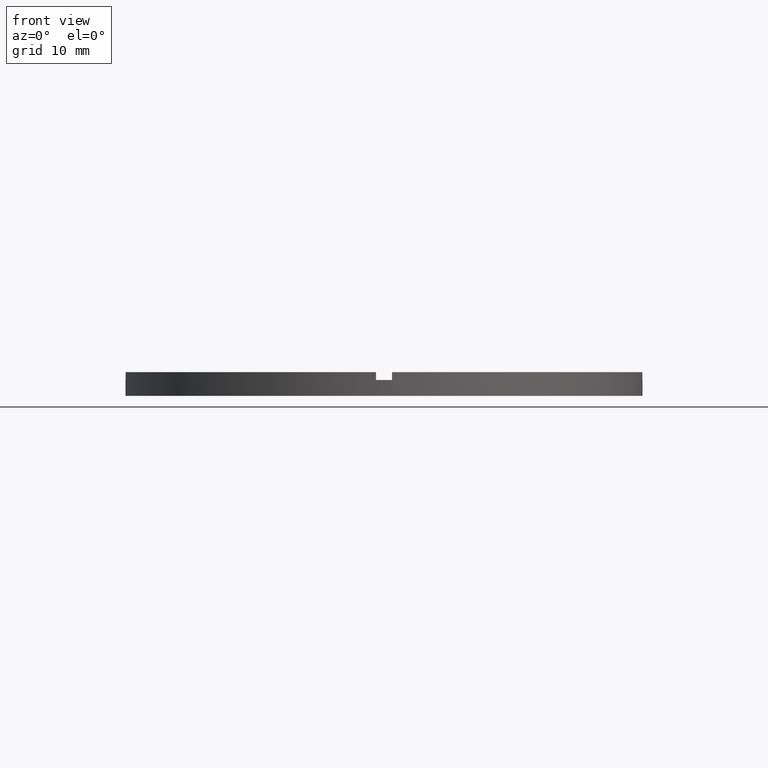
[diagram: clean part render]
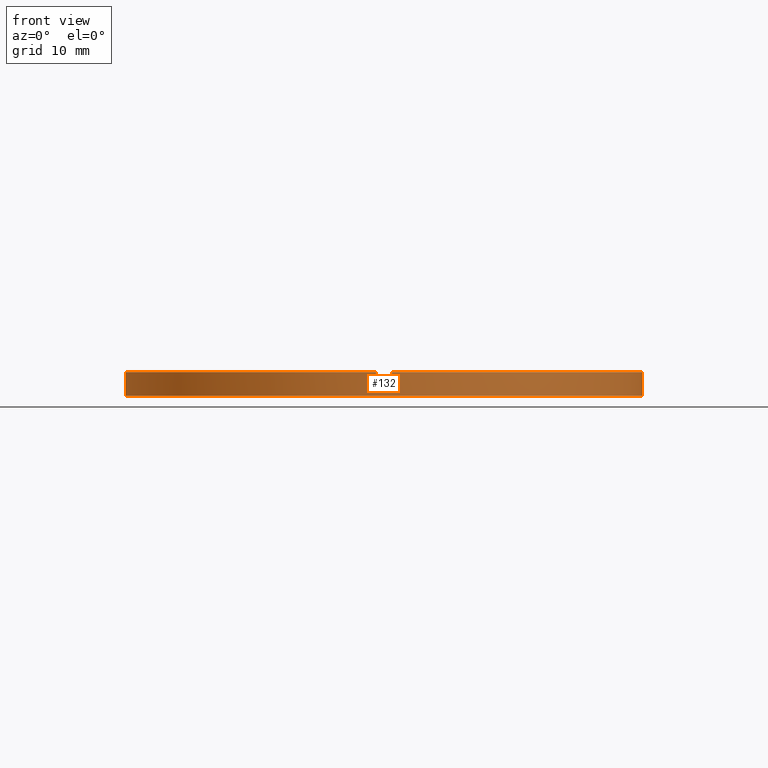
[diagram: same view with one face highlighted and labeled with its STEP entity id]
A machine part, front view. The second image highlights one B-rep face of the part: STEP entity #132.
In plain terms, the highlighted cylindrical surface (partial cylindrical patch) has radius 32.5 mm, axis along (-0, -0, -1).
Its self-contained STEP definition (entity closure, byte-faithful):
#1 = CYLINDRICAL_SURFACE ( 'NONE', #261, 32.50000000000000000 ) ;
#5 = VECTOR ( 'NONE', #608, 1000.000000000000000 ) ;
#24 = CARTESIAN_POINT ( 'NONE',  ( 0.000000000000000000, 0.000000000000000000, 2.000000000000000000 ) ) ;
#25 = LINE ( 'NONE', #517, #52 ) ;
#31 = VERTEX_POINT ( 'NONE', #434 ) ;
#34 = VERTEX_POINT ( 'NONE', #257 ) ;
#38 = VERTEX_POINT ( 'NONE', #614 ) ;
#39 = DIRECTION ( 'NONE',  ( -0.000000000000000000, -0.000000000000000000, -1.000000000000000000 ) ) ;
#40 = CARTESIAN_POINT ( 'NONE',  ( 32.50000000000000000, 3.980102097228898626E-15, 0.000000000000000000 ) ) ;
#43 = VECTOR ( 'NONE', #39, 1000.000000000000000 ) ;
#46 = CIRCLE ( 'NONE', #106, 32.50000000000000000 ) ;
#48 = DIRECTION ( 'NONE',  ( 0.000000000000000000, 0.000000000000000000, 1.000000000000000000 ) ) ;
#51 = LINE ( 'NONE', #522, #43 ) ;
#52 = VECTOR ( 'NONE', #633, 1000.000000000000000 ) ;
#72 = DIRECTION ( 'NONE',  ( 1.000000000000000000, 0.000000000000000000, 0.000000000000000000 ) ) ;
#85 = DIRECTION ( 'NONE',  ( 1.000000000000000000, 0.000000000000000000, 0.000000000000000000 ) ) ;
#91 = LINE ( 'NONE', #638, #357 ) ;
#104 = DIRECTION ( 'NONE',  ( 1.000000000000000000, 0.000000000000000000, 0.000000000000000000 ) ) ;
#106 = AXIS2_PLACEMENT_3D ( 'NONE', #153, #108, #411 ) ;
#108 = DIRECTION ( 'NONE',  ( -0.000000000000000000, 0.000000000000000000, 1.000000000000000000 ) ) ;
#121 = CARTESIAN_POINT ( 'NONE',  ( 0.000000000000000000, 0.000000000000000000, 3.000000000000000000 ) ) ;
#128 = EDGE_CURVE ( 'NONE', #496, #229, #266, .T. ) ;
#132 = ADVANCED_FACE ( 'NONE', ( #260 ), #1, .T. ) ;
#138 = ORIENTED_EDGE ( 'NONE', *, *, #682, .F. ) ;
#143 = CARTESIAN_POINT ( 'NONE',  ( -32.50000000000000000, 0.000000000000000000, 0.000000000000000000 ) ) ;
#146 = DIRECTION ( 'NONE',  ( 0.000000000000000000, 0.000000000000000000, 1.000000000000000000 ) ) ;
#151 = EDGE_CURVE ( 'NONE', #31, #670, #527, .T. ) ;
#153 = CARTESIAN_POINT ( 'NONE',  ( 0.000000000000000000, 0.000000000000000000, 2.000000000000000000 ) ) ;
#156 = EDGE_CURVE ( 'NONE', #179, #245, #544, .T. ) ;
#172 = DIRECTION ( 'NONE',  ( -1.000000000000000000, 0.000000000000000000, 0.000000000000000000 ) ) ;
#179 = VERTEX_POINT ( 'NONE', #143 ) ;
#182 = ORIENTED_EDGE ( 'NONE', *, *, #742, .F. ) ;
#195 = EDGE_LOOP ( 'NONE', ( #507, #319, #665, #493, #197, #138, #395, #200, #203, #182, #667, #476 ) ) ;
#197 = ORIENTED_EDGE ( 'NONE', *, *, #707, .T. ) ;
#200 = ORIENTED_EDGE ( 'NONE', *, *, #487, .F. ) ;
#203 = ORIENTED_EDGE ( 'NONE', *, *, #151, .T. ) ;
#229 = VERTEX_POINT ( 'NONE', #399 ) ;
#231 = DIRECTION ( 'NONE',  ( -0.000000000000000000, -0.000000000000000000, -1.000000000000000000 ) ) ;
#245 = VERTEX_POINT ( 'NONE', #40 ) ;
#257 = CARTESIAN_POINT ( 'NONE',  ( -1.000000000000161426, -32.48461174156157227, 2.000000000000000000 ) ) ;
#260 = FACE_OUTER_BOUND ( 'NONE', #195, .T. ) ;
#261 = AXIS2_PLACEMENT_3D ( 'NONE', #121, #231, #172 ) ;
#263 = VECTOR ( 'NONE', #618, 1000.000000000000000 ) ;
#266 = LINE ( 'NONE', #559, #263 ) ;
#276 = AXIS2_PLACEMENT_3D ( 'NONE', #592, #48, #104 ) ;
#279 = CARTESIAN_POINT ( 'NONE',  ( -32.50000000000000000, 0.000000000000000000, 3.000000000000000000 ) ) ;
#282 = VERTEX_POINT ( 'NONE', #635 ) ;
#304 = DIRECTION ( 'NONE',  ( -0.000000000000000000, -0.000000000000000000, -1.000000000000000000 ) ) ;
#308 = CIRCLE ( 'NONE', #423, 32.50000000000000000 ) ;
#319 = ORIENTED_EDGE ( 'NONE', *, *, #715, .F. ) ;
#322 = VECTOR ( 'NONE', #647, 1000.000000000000000 ) ;
#349 = CIRCLE ( 'NONE', #773, 32.50000000000000000 ) ;
#354 = EDGE_CURVE ( 'NONE', #483, #179, #571, .T. ) ;
#357 = VECTOR ( 'NONE', #304, 1000.000000000000000 ) ;
#362 = CARTESIAN_POINT ( 'NONE',  ( 0.000000000000000000, 0.000000000000000000, 3.000000000000000000 ) ) ;
#379 = CARTESIAN_POINT ( 'NONE',  ( -32.50000000000000000, 0.000000000000000000, 2.000000000000000000 ) ) ;
#395 = ORIENTED_EDGE ( 'NONE', *, *, #626, .T. ) ;
#399 = CARTESIAN_POINT ( 'NONE',  ( 32.48461174156157227, -1.000000000000158540, 3.000000000000000000 ) ) ;
#411 = DIRECTION ( 'NONE',  ( 1.000000000000000000, 0.000000000000000000, 0.000000000000000000 ) ) ;
#419 = CARTESIAN_POINT ( 'NONE',  ( -1.000000000000161426, -32.48461174156157227, 3.000000000000000000 ) ) ;
#423 = AXIS2_PLACEMENT_3D ( 'NONE', #362, #465, #630 ) ;
#434 = CARTESIAN_POINT ( 'NONE',  ( -32.48461174156157227, -1.000000000000025979, 3.000000000000000000 ) ) ;
#447 = EDGE_CURVE ( 'NONE', #38, #245, #91, .T. ) ;
#455 = VERTEX_POINT ( 'NONE', #419 ) ;
#465 = DIRECTION ( 'NONE',  ( 0.000000000000000000, 0.000000000000000000, 1.000000000000000000 ) ) ;
#476 = ORIENTED_EDGE ( 'NONE', *, *, #156, .T. ) ;
#483 = VERTEX_POINT ( 'NONE', #379 ) ;
#487 = EDGE_CURVE ( 'NONE', #31, #455, #349, .T. ) ;
#493 = ORIENTED_EDGE ( 'NONE', *, *, #680, .F. ) ;
#496 = VERTEX_POINT ( 'NONE', #629 ) ;
#507 = ORIENTED_EDGE ( 'NONE', *, *, #447, .F. ) ;
#509 = DIRECTION ( 'NONE',  ( 0.000000000000000000, 0.000000000000000000, 1.000000000000000000 ) ) ;
#517 = CARTESIAN_POINT ( 'NONE',  ( -1.000000000000161426, -32.48461174156157227, 3.000000000000000000 ) ) ;
#522 = CARTESIAN_POINT ( 'NONE',  ( 0.9999999999998386846, -32.48461174156157938, 3.000000000000000000 ) ) ;
#527 = LINE ( 'NONE', #539, #5 ) ;
#539 = CARTESIAN_POINT ( 'NONE',  ( -32.48461174156157227, -1.000000000000025979, 3.000000000000000000 ) ) ;
#544 = CIRCLE ( 'NONE', #622, 32.50000000000000000 ) ;
#545 = CIRCLE ( 'NONE', #276, 32.50000000000000000 ) ;
#550 = CIRCLE ( 'NONE', #746, 32.50000000000000000 ) ;
#559 = CARTESIAN_POINT ( 'NONE',  ( 32.48461174156157227, -1.000000000000158540, 3.000000000000000000 ) ) ;
#571 = LINE ( 'NONE', #279, #322 ) ;
#583 = CARTESIAN_POINT ( 'NONE',  ( -32.48461174156157227, -1.000000000000025979, 2.000000000000000000 ) ) ;
#592 = CARTESIAN_POINT ( 'NONE',  ( 0.000000000000000000, 0.000000000000000000, 2.000000000000000000 ) ) ;
#608 = DIRECTION ( 'NONE',  ( -0.000000000000000000, -0.000000000000000000, -1.000000000000000000 ) ) ;
#614 = CARTESIAN_POINT ( 'NONE',  ( 32.50000000000000000, 3.980102097228898626E-15, 2.000000000000000000 ) ) ;
#618 = DIRECTION ( 'NONE',  ( 0.000000000000000000, 0.000000000000000000, 1.000000000000000000 ) ) ;
#622 = AXIS2_PLACEMENT_3D ( 'NONE', #659, #782, #72 ) ;
#623 = CARTESIAN_POINT ( 'NONE',  ( 0.000000000000000000, 0.000000000000000000, 3.000000000000000000 ) ) ;
#626 = EDGE_CURVE ( 'NONE', #34, #455, #25, .T. ) ;
#628 = DIRECTION ( 'NONE',  ( 1.000000000000000000, 0.000000000000000000, 0.000000000000000000 ) ) ;
#629 = CARTESIAN_POINT ( 'NONE',  ( 32.48461174156157227, -1.000000000000158540, 2.000000000000000000 ) ) ;
#630 = DIRECTION ( 'NONE',  ( 1.000000000000000000, 0.000000000000000000, 0.000000000000000000 ) ) ;
#633 = DIRECTION ( 'NONE',  ( 0.000000000000000000, 0.000000000000000000, 1.000000000000000000 ) ) ;
#635 = CARTESIAN_POINT ( 'NONE',  ( 0.9999999999998386846, -32.48461174156157938, 2.000000000000000000 ) ) ;
#638 = CARTESIAN_POINT ( 'NONE',  ( 32.50000000000000000, 3.980102097228898626E-15, 3.000000000000000000 ) ) ;
#641 = CARTESIAN_POINT ( 'NONE',  ( 0.9999999999998386846, -32.48461174156157938, 3.000000000000000000 ) ) ;
#647 = DIRECTION ( 'NONE',  ( -0.000000000000000000, -0.000000000000000000, -1.000000000000000000 ) ) ;
#659 = CARTESIAN_POINT ( 'NONE',  ( 0.000000000000000000, 0.000000000000000000, 0.000000000000000000 ) ) ;
#665 = ORIENTED_EDGE ( 'NONE', *, *, #128, .T. ) ;
#667 = ORIENTED_EDGE ( 'NONE', *, *, #354, .T. ) ;
#670 = VERTEX_POINT ( 'NONE', #583 ) ;
#679 = VERTEX_POINT ( 'NONE', #641 ) ;
#680 = EDGE_CURVE ( 'NONE', #679, #229, #308, .T. ) ;
#682 = EDGE_CURVE ( 'NONE', #34, #282, #46, .T. ) ;
#707 = EDGE_CURVE ( 'NONE', #679, #282, #51, .T. ) ;
#715 = EDGE_CURVE ( 'NONE', #496, #38, #545, .T. ) ;
#742 = EDGE_CURVE ( 'NONE', #483, #670, #550, .T. ) ;
#746 = AXIS2_PLACEMENT_3D ( 'NONE', #24, #509, #628 ) ;
#773 = AXIS2_PLACEMENT_3D ( 'NONE', #623, #146, #85 ) ;
#782 = DIRECTION ( 'NONE',  ( 0.000000000000000000, 0.000000000000000000, 1.000000000000000000 ) ) ;